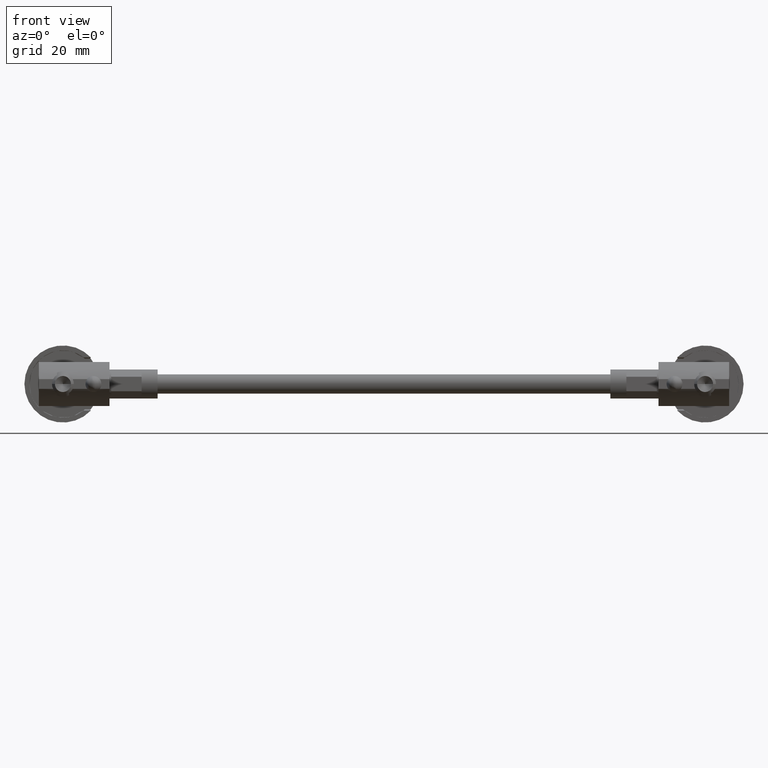
[diagram: clean part render]
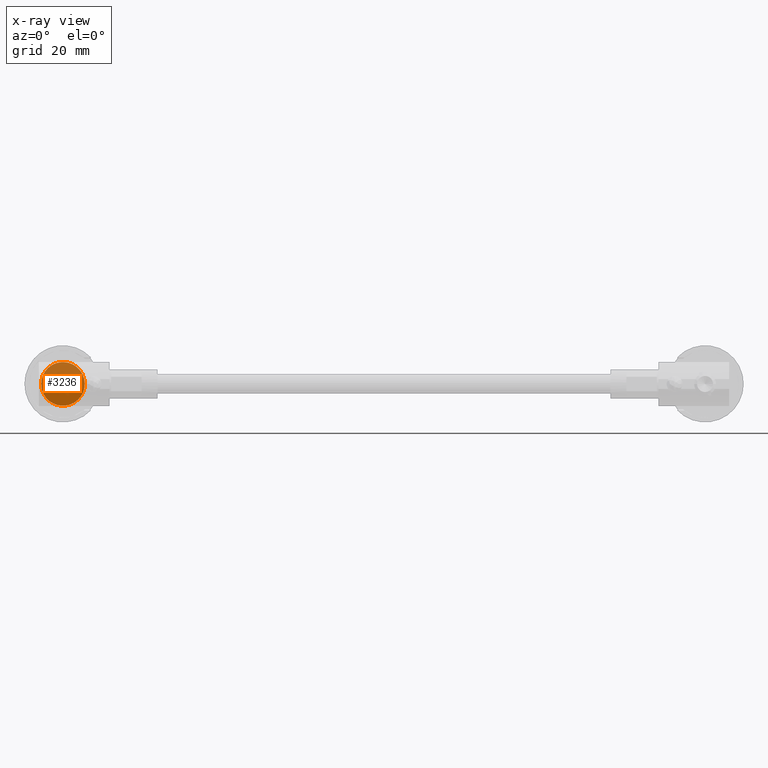
[diagram: x-ray — body ghosted, one internal face saturated and labeled with its STEP entity id]
A machine part, front view, then the same camera in x-ray: the body is ghosted and one INTERNAL B-rep face — a face not visible from any outside direction — is saturated and labeled: STEP entity #3236.
In plain terms, the highlighted planar face has unit normal (0, 1, 0).
Its self-contained STEP definition (entity closure, byte-faithful):
#21 = PLANE ( 'NONE',  #3323 ) ;
#50 = CARTESIAN_POINT ( 'NONE',  ( 2.451776622168244700, -1.499999999999999600, -6.342682507592298800 ) ) ;
#78 = CARTESIAN_POINT ( 'NONE',  ( 4.476154292438891100, -1.500000000000000000, -5.140550543833839500 ) ) ;
#105 = CARTESIAN_POINT ( 'NONE',  ( 0.5187553181418490500, -1.500000000000000700, -6.785809563154090900 ) ) ;
#127 = CARTESIAN_POINT ( 'NONE',  ( -4.974412021882804100, -1.500000000000000000, 4.642213896186592400 ) ) ;
#131 = CARTESIAN_POINT ( 'NONE',  ( 1.058299147395045800, -1.500000000000000200, -6.717518085833138000 ) ) ;
#141 = CARTESIAN_POINT ( 'NONE',  ( 0.0000000000000000000, -1.500000000000000000, 2.450000000000000200 ) ) ;
#151 = CARTESIAN_POINT ( 'NONE',  ( -3.671876369771171200, -1.500000000000000000, 5.723708160945111700 ) ) ;
#180 = CARTESIAN_POINT ( 'NONE',  ( 6.302254143006276600, -1.500000000000000000, -2.554348086591974100 ) ) ;
#212 = CARTESIAN_POINT ( 'NONE',  ( 2.297827778735740600, -1.500000000000000400, 6.403785664097548600 ) ) ;
#236 = CARTESIAN_POINT ( 'NONE',  ( 6.646299250974641900, -1.500000000000000700, 1.454367232381124800 ) ) ;
#259 = CARTESIAN_POINT ( 'NONE',  ( -6.234827372425893800, -1.500000000000000200, 2.714904982621316500 ) ) ;
#265 = CARTESIAN_POINT ( 'NONE',  ( 2.609466943149886500, -1.499999999999999800, 6.279662359104849000 ) ) ;
#295 = CARTESIAN_POINT ( 'NONE',  ( 5.814030721527166700, -1.500000000000000000, 3.527156728714956600 ) ) ;
#318 = CARTESIAN_POINT ( 'NONE',  ( -5.902513528127101900, -1.499999999999999600, -3.379979749997506800 ) ) ;
#506 = CARTESIAN_POINT ( 'NONE',  ( 2.775866078067334400E-016, -1.499999999999999800, -6.799999999999999800 ) ) ;
#620 = DIRECTION ( 'NONE',  ( 0.0000000000000000000, -0.0000000000000000000, 1.000000000000000000 ) ) ;
#681 = CARTESIAN_POINT ( 'NONE',  ( 5.209381874771738200, -1.499999999999999600, -4.381717260642677300 ) ) ;
#732 = ORIENTED_EDGE ( 'NONE', *, *, #6584, .T. ) ;
#760 = CARTESIAN_POINT ( 'NONE',  ( 2.716858799559545500, -1.500000000000000000, -6.237894347230041000 ) ) ;
#784 = CARTESIAN_POINT ( 'NONE',  ( 6.570676803030062600, -1.499999999999999600, 1.775342997942298600 ) ) ;
#813 = CARTESIAN_POINT ( 'NONE',  ( 6.333143709723890100, -1.499999999999999800, 2.476317178203199200 ) ) ;
#833 = VERTEX_POINT ( 'NONE', #1843 ) ;
#838 = CARTESIAN_POINT ( 'NONE',  ( 6.665632822469733700, -1.500000000000000000, -1.345465900745237400 ) ) ;
#840 = CARTESIAN_POINT ( 'NONE',  ( 2.775866078067334400E-016, -1.499999999999999800, -6.799999999999999800 ) ) ;
#870 = CARTESIAN_POINT ( 'NONE',  ( 2.714904982619844400, -1.500000000000000000, 6.234827372426815700 ) ) ;
#891 = CARTESIAN_POINT ( 'NONE',  ( -6.362324675255180800, -1.499999999999999800, -2.400366970927881200 ) ) ;
#920 = CARTESIAN_POINT ( 'NONE',  ( -5.753760992430486000, -1.500000000000000200, -3.624598606719601900 ) ) ;
#968 =( BOUNDED_CURVE ( )  B_SPLINE_CURVE ( 3, ( #8071, #6158, #5461, #1835 ),
 .UNSPECIFIED., .F., .F. ) 
 B_SPLINE_CURVE_WITH_KNOTS ( ( 4, 4 ),
 ( 0.0000000000000000000, 1.000000000000000000 ),
 .UNSPECIFIED. ) 
 CURVE ( )  GEOMETRIC_REPRESENTATION_ITEM ( )  RATIONAL_B_SPLINE_CURVE ( ( 1.000000000000000000, 0.3333333333333333700, 0.3333333333333333700, 1.000000000000000000 ) ) 
 REPRESENTATION_ITEM ( '' )  );
#985 = CARTESIAN_POINT ( 'NONE',  ( -6.342682507592309400, -1.500000000000000000, -2.451776622168173600 ) ) ;
#1012 = CARTESIAN_POINT ( 'NONE',  ( -2.297827778736319700, -1.499999999999999800, -6.403785664097295400 ) ) ;
#1100 = CARTESIAN_POINT ( 'NONE',  ( -3.818714833598194400, -1.500000000000000200, -5.626815244997694700 ) ) ;
#1269 = CARTESIAN_POINT ( 'NONE',  ( 2.323110245679947300, -1.500000000000000400, -6.391308034044540100 ) ) ;
#1327 = EDGE_LOOP ( 'NONE', ( #4024, #732 ) ) ;
#1374 = CARTESIAN_POINT ( 'NONE',  ( -3.029467667712204100, -1.500000000000000200, 6.095520900867990500 ) ) ;
#1392 = VERTEX_POINT ( 'NONE', #141 ) ;
#1401 = CARTESIAN_POINT ( 'NONE',  ( 6.762191246183427900, -1.500000000000000200, -0.8280179359601295100 ) ) ;
#1430 = CARTESIAN_POINT ( 'NONE',  ( 6.455576622285819100, -1.500000000000000200, 2.141848814718721300 ) ) ;
#1449 = CARTESIAN_POINT ( 'NONE',  ( -3.527156728713123800, -1.500000000000000200, 5.814030721528038900 ) ) ;
#1457 = CARTESIAN_POINT ( 'NONE',  ( 1.345465900745219400, -1.499999999999999800, 6.665632822469741600 ) ) ;
#1479 = CARTESIAN_POINT ( 'NONE',  ( -6.333143709723809200, -1.500000000000000000, -2.476317178203424800 ) ) ;
#1484 = CARTESIAN_POINT ( 'NONE',  ( 0.0000000000000000000, -1.500000000000000000, 6.799999999999999800 ) ) ;
#1495 = ORIENTED_EDGE ( 'NONE', *, *, #3879, .F. ) ;
#1509 = CARTESIAN_POINT ( 'NONE',  ( -6.403785664096937500, -1.500000000000000000, 2.297827778738251500 ) ) ;
#1515 = CARTESIAN_POINT ( 'NONE',  ( 4.057979973667790400, -1.500000000000000200, 5.458735099098496400 ) ) ;
#1537 = CARTESIAN_POINT ( 'NONE',  ( -6.391308034044573800, -1.500000000000000200, -2.323110245679712800 ) ) ;
#1568 = CARTESIAN_POINT ( 'NONE',  ( -6.570676803029539500, -1.500000000000000000, -1.775342997943859100 ) ) ;
#1731 = CARTESIAN_POINT ( 'NONE',  ( -1.345465900745489200, -1.500000000000000000, -6.665632822469625300 ) ) ;
#1817 = CARTESIAN_POINT ( 'NONE',  ( 0.0000000000000000000, -1.500000000000000000, 2.450000000000000200 ) ) ;
#1835 = CARTESIAN_POINT ( 'NONE',  ( 0.0000000000000000000, -1.500000000000000000, 2.450000000000000200 ) ) ;
#1843 = CARTESIAN_POINT ( 'NONE',  ( 0.0000000000000000000, -1.500000000000000000, 6.799999999999999800 ) ) ;
#1898 = CARTESIAN_POINT ( 'NONE',  ( 3.527156728713714900, -1.499999999999999800, -5.814030721527546000 ) ) ;
#1921 = CARTESIAN_POINT ( 'NONE',  ( 1.775342997944396900, -1.499999999999999800, -6.570676803029454200 ) ) ;
#1971 = CARTESIAN_POINT ( 'NONE',  ( 0.0000000000000000000, -1.500000000000000000, 6.799999999999999800 ) ) ;
#2017 = CARTESIAN_POINT ( 'NONE',  ( -0.5187553181419247700, -1.500000000000000200, 6.785809563154089100 ) ) ;
#2022 = CARTESIAN_POINT ( 'NONE',  ( 6.695785047961537700, -1.499999999999999800, 1.186255728990053000 ) ) ;
#2049 = CARTESIAN_POINT ( 'NONE',  ( 5.723708160945395000, -1.500000000000000200, 3.671876369770889600 ) ) ;
#2074 = CARTESIAN_POINT ( 'NONE',  ( 6.717505657374201400, -1.500000000000000400, 1.058366280036319800 ) ) ;
#2097 = CARTESIAN_POINT ( 'NONE',  ( 2.872077163165587300, -1.500000000000000000, 6.165637993851405000 ) ) ;
#2124 = CARTESIAN_POINT ( 'NONE',  ( -6.665632822469461000, -1.499999999999999800, 1.345465900746376700 ) ) ;
#2132 = CARTESIAN_POINT ( 'NONE',  ( 4.381717260643701400, -1.500000000000000000, 5.209381874771047200 ) ) ;
#2157 = CARTESIAN_POINT ( 'NONE',  ( -6.744399483090574200, -1.500000000000000400, -0.8789654558778692300 ) ) ;
#2181 = CARTESIAN_POINT ( 'NONE',  ( -5.434459999022031700, -1.500000000000000400, -4.114225948999500600 ) ) ;
#2206 = CARTESIAN_POINT ( 'NONE',  ( -5.626815244997860800, -1.500000000000000200, 3.818714833597938200 ) ) ;
#2347 = CARTESIAN_POINT ( 'NONE',  ( -0.4157435721798152800, -1.499999999999999300, -6.799999999999998000 ) ) ;
#2517 = CARTESIAN_POINT ( 'NONE',  ( 3.671876369771129000, -1.500000000000000000, -5.723708160945107300 ) ) ;
#2593 = CARTESIAN_POINT ( 'NONE',  ( -1.058299147395079400, -1.500000000000000000, 6.717518085833137100 ) ) ;
#2597 = CARTESIAN_POINT ( 'NONE',  ( 3.029467667713432000, -1.499999999999999600, -6.095520900866964600 ) ) ;
#2650 = CARTESIAN_POINT ( 'NONE',  ( -2.141848814718508200, -1.500000000000000200, 6.455576622285684100 ) ) ;
#2655 = CARTESIAN_POINT ( 'NONE',  ( 6.744399483090573400, -1.500000000000000000, 0.8789654558769736100 ) ) ;
#2678 = FACE_BOUND ( 'NONE', #5954, .T. ) ;
#2680 = CARTESIAN_POINT ( 'NONE',  ( 5.140550543832670600, -1.500000000000000400, 4.476154292439686000 ) ) ;
#2705 = CARTESIAN_POINT ( 'NONE',  ( -5.209381874770802100, -1.499999999999999800, 4.381717260643946500 ) ) ;
#2709 = CARTESIAN_POINT ( 'NONE',  ( 0.4157435721783530000, -1.499999999999999600, 6.799999999999998900 ) ) ;
#2736 = CARTESIAN_POINT ( 'NONE',  ( 5.626815244998110400, -1.500000000000000000, -3.818714833597597100 ) ) ;
#2756 = CARTESIAN_POINT ( 'NONE',  ( -6.762191246183425300, -1.499999999999999800, 0.8280179359615063000 ) ) ;
#2761 = CARTESIAN_POINT ( 'NONE',  ( 6.237894347229592500, -1.500000000000000000, 2.716858799561012700 ) ) ;
#2784 = CARTESIAN_POINT ( 'NONE',  ( -6.279662359104335700, -1.499999999999999800, 2.609466943150703600 ) ) ;
#2811 = CARTESIAN_POINT ( 'NONE',  ( -4.642213896187136900, -1.499999999999999600, -4.974412021882446100 ) ) ;
#2841 = CARTESIAN_POINT ( 'NONE',  ( -5.817394889397862200, -1.500000000000000000, 3.528534645719064100 ) ) ;
#2870 = CARTESIAN_POINT ( 'NONE',  ( -2.609466943149932200, -1.500000000000000200, -6.279662359104843700 ) ) ;
#2896 = CARTESIAN_POINT ( 'NONE',  ( -1.985703685445740200, -1.500000000000000000, -6.510194084002892900 ) ) ;
#3110 = VERTEX_POINT ( 'NONE', #840 ) ;
#3112 = CARTESIAN_POINT ( 'NONE',  ( -4.899999999999999500, -1.499999999999999800, 2.450000000000000200 ) ) ;
#3236 = ADVANCED_FACE ( 'NONE', ( #2678, #4751 ), #21, .F. ) ;
#3259 = CARTESIAN_POINT ( 'NONE',  ( -1.210221446905288300, -1.499999999999999800, 6.691498662014975500 ) ) ;
#3281 = CARTESIAN_POINT ( 'NONE',  ( -1.775342997942013000, -1.500000000000000000, 6.570676803029880600 ) ) ;
#3288 = CARTESIAN_POINT ( 'NONE',  ( 6.403785664097532600, -1.500000000000000200, -2.297827778735778800 ) ) ;
#3315 = CARTESIAN_POINT ( 'NONE',  ( 6.691498662014965700, -1.500000000000000000, 1.210221446905266800 ) ) ;
#3323 = AXIS2_PLACEMENT_3D ( 'NONE', #6860, #6248, #620 ) ;
#3336 = CARTESIAN_POINT ( 'NONE',  ( -0.8788503713491333500, -1.500000000000000000, 6.744420789020177900 ) ) ;
#3341 = CARTESIAN_POINT ( 'NONE',  ( 5.660113123008792400, -1.499999999999999800, -3.769149242344393100 ) ) ;
#3364 = CARTESIAN_POINT ( 'NONE',  ( -6.800032466178444100, -1.499999999999999600, 0.4162744795770430000 ) ) ;
#3367 = CARTESIAN_POINT ( 'NONE',  ( 6.676295748310652200, -1.499999999999999800, -1.291474511759278500 ) ) ;
#3396 = CARTESIAN_POINT ( 'NONE',  ( 6.095520900866181300, -1.500000000000000000, 3.029467667716000600 ) ) ;
#3440 = CARTESIAN_POINT ( 'NONE',  ( -4.381717260644903100, -1.500000000000000200, -5.209381874770177700 ) ) ;
#3466 = CARTESIAN_POINT ( 'NONE',  ( -6.649156264789034800, -1.500000000000000000, 1.426318617855332000 ) ) ;
#3525 = CARTESIAN_POINT ( 'NONE',  ( -4.057979973668692800, -1.499999999999999800, -5.458735099097843600 ) ) ;
#3573 = CARTESIAN_POINT ( 'NONE',  ( -3.769149242344355300, -1.500000000000000000, -5.660113123008804000 ) ) ;
#3790 = CARTESIAN_POINT ( 'NONE',  ( 2.141848814720296100, -1.500000000000000200, -6.455576622285363400 ) ) ;
#3835 = CARTESIAN_POINT ( 'NONE',  ( -2.476317178203475400, -1.500000000000000200, 6.333143709723760400 ) ) ;
#3865 = CARTESIAN_POINT ( 'NONE',  ( -3.624598606719408300, -1.500000000000000000, 5.753760992430669000 ) ) ;
#3879 = EDGE_CURVE ( 'NONE', #1392, #6167, #7613, .T. ) ;
#3897 = CARTESIAN_POINT ( 'NONE',  ( -2.451776622167919100, -1.500000000000000700, 6.342682507592357400 ) ) ;
#3900 = CARTESIAN_POINT ( 'NONE',  ( 6.279662359104862400, -1.499999999999999800, -2.609466943149859800 ) ) ;
#3928 = CARTESIAN_POINT ( 'NONE',  ( 2.554348086591984300, -1.499999999999999800, 6.302254143006271300 ) ) ;
#3960 = CARTESIAN_POINT ( 'NONE',  ( 5.902513528126259100, -1.499999999999999800, 3.379979749999822800 ) ) ;
#3989 = CARTESIAN_POINT ( 'NONE',  ( 3.231918100491303600, -1.500000000000000200, 5.990637820600256600 ) ) ;
#4009 = CARTESIAN_POINT ( 'NONE',  ( -5.990637820598342600, -1.500000000000000000, 3.231918100494357100 ) ) ;
#4013 = CARTESIAN_POINT ( 'NONE',  ( 6.362324675255319300, -1.500000000000000000, 2.400366970927468200 ) ) ;
#4024 = ORIENTED_EDGE ( 'NONE', *, *, #4267, .T. ) ;
#4036 = CARTESIAN_POINT ( 'NONE',  ( -6.237894347230232800, -1.500000000000000200, -2.716858799559255900 ) ) ;
#4241 = CARTESIAN_POINT ( 'NONE',  ( -2.872077163165716500, -1.500000000000000000, -6.165637993851382800 ) ) ;
#4267 = EDGE_CURVE ( 'NONE', #833, #3110, #5926, .T. ) ;
#4414 = CARTESIAN_POINT ( 'NONE',  ( 4.114225949001683700, -1.500000000000000200, -5.434459999020601700 ) ) ;
#4436 = CARTESIAN_POINT ( 'NONE',  ( 4.974412021883339600, -1.500000000000000200, -4.642213896185865900 ) ) ;
#4462 = CARTESIAN_POINT ( 'NONE',  ( 1.186234493154547900, -1.500000000000000200, -6.695788979412836500 ) ) ;
#4491 = CARTESIAN_POINT ( 'NONE',  ( 3.379979749997891000, -1.500000000000000000, -5.902513528126849700 ) ) ;
#4516 = CARTESIAN_POINT ( 'NONE',  ( -4.476154292439964000, -1.500000000000000000, 5.140550543832390000 ) ) ;
#4538 = CARTESIAN_POINT ( 'NONE',  ( -1.135077462009557600, -1.499999999999999800, 6.704658002441529000 ) ) ;
#4543 = CARTESIAN_POINT ( 'NONE',  ( 6.800032466178445900, -1.500000000000000000, -0.4162744795756824200 ) ) ;
#4562 = CARTESIAN_POINT ( 'NONE',  ( -2.716858799558843800, -1.500000000000000200, 6.237894347230626300 ) ) ;
#4565 = CARTESIAN_POINT ( 'NONE',  ( 1.426318617853409500, -1.500000000000000200, 6.649156264789503700 ) ) ;
#4596 = CARTESIAN_POINT ( 'NONE',  ( 6.649156264789488600, -1.500000000000000000, -1.426318617853439900 ) ) ;
#4619 = CARTESIAN_POINT ( 'NONE',  ( 1.262920981324877800, -1.500000000000000000, 6.681746359617402000 ) ) ;
#4636 = CARTESIAN_POINT ( 'NONE',  ( -6.646299250974337300, -1.500000000000000000, -1.454367232382017600 ) ) ;
#4643 = CARTESIAN_POINT ( 'NONE',  ( 5.753760992430185800, -1.500000000000000200, 3.624598606720427900 ) ) ;
#4665 = CARTESIAN_POINT ( 'NONE',  ( -5.814030721527706700, -1.499999999999999800, -3.527156728713468400 ) ) ;
#4695 = CARTESIAN_POINT ( 'NONE',  ( -5.660113123009075800, -1.500000000000000200, 3.769149242343942800 ) ) ;
#4725 = CARTESIAN_POINT ( 'NONE',  ( -6.455576622285429200, -1.500000000000000400, -2.141848814719889700 ) ) ;
#4751 = FACE_OUTER_BOUND ( 'NONE', #1327, .T. ) ;
#4752 = CARTESIAN_POINT ( 'NONE',  ( -2.554348086591840000, -1.500000000000000000, -6.302254143006334400 ) ) ;
#5137 = CARTESIAN_POINT ( 'NONE',  ( -5.458735099098314300, -1.500000000000000700, 4.057979973667976900 ) ) ;
#5143 = CARTESIAN_POINT ( 'NONE',  ( 3.528534645717319700, -1.499999999999999800, 5.817394889398953800 ) ) ;
#5173 = CARTESIAN_POINT ( 'NONE',  ( 6.704650520001965900, -1.500000000000000000, 1.135117878599691200 ) ) ;
#5195 = CARTESIAN_POINT ( 'NONE',  ( 1.985703685444727200, -1.500000000000000200, 6.510194084003333400 ) ) ;
#5220 = CARTESIAN_POINT ( 'NONE',  ( 3.818714833597873800, -1.499999999999999800, 5.626815244997924700 ) ) ;
#5243 = CARTESIAN_POINT ( 'NONE',  ( -6.302254143006423200, -1.500000000000000200, 2.554348086591358100 ) ) ;
#5248 = CARTESIAN_POINT ( 'NONE',  ( 6.234827372426835300, -1.500000000000000000, -2.714904982619796800 ) ) ;
#5298 = CARTESIAN_POINT ( 'NONE',  ( -6.695785047961540400, -1.500000000000000400, -1.186255728990220500 ) ) ;
#5326 = CARTESIAN_POINT ( 'NONE',  ( -6.717505657374199600, -1.500000000000000000, -1.058366280036841900 ) ) ;
#5350 = CARTESIAN_POINT ( 'NONE',  ( -1.614034393178139100, -1.500000000000000200, -6.607335781103207000 ) ) ;
#5461 = CARTESIAN_POINT ( 'NONE',  ( 4.899999999999999500, -1.499999999999999800, 2.450000000000000200 ) ) ;
#5468 = CARTESIAN_POINT ( 'NONE',  ( -3.231918100491477200, -1.500000000000000200, -5.990637820600226400 ) ) ;
#5659 = ORIENTED_EDGE ( 'NONE', *, *, #7396, .F. ) ;
#5670 = CARTESIAN_POINT ( 'NONE',  ( 1.454367232382324500, -1.499999999999999800, -6.646299250974289300 ) ) ;
#5726 = CARTESIAN_POINT ( 'NONE',  ( 2.775866078067334400E-016, -1.499999999999999800, -6.799999999999999800 ) ) ;
#5753 = CARTESIAN_POINT ( 'NONE',  ( -3.379979749996969900, -1.500000000000000000, 5.902513528127618900 ) ) ;
#5783 = CARTESIAN_POINT ( 'NONE',  ( 5.817394889398974200, -1.500000000000000200, -3.528534645717263300 ) ) ;
#5809 = CARTESIAN_POINT ( 'NONE',  ( 6.342682507592383200, -1.500000000000000200, 2.451776622167954700 ) ) ;
#5829 = CARTESIAN_POINT ( 'NONE',  ( -4.114225949001333800, -1.500000000000000700, 5.434459999020574200 ) ) ;
#5832 = CARTESIAN_POINT ( 'NONE',  ( 1.291474511759269000, -1.500000000000000200, 6.676295748310657500 ) ) ;
#5836 = B_SPLINE_CURVE_WITH_KNOTS ( 'NONE', 3,
 ( #5726, #7576, #105, #7601, #131, #6388, #4462, #7527, #5670, #1921, #3790, #1269, #6991, #50, #6365, #760, #2597, #4491, #1898, #6283, #2517, #4414, #78, #4436, #681, #6483, #7657, #2736, #3341, #5783, #7093, #6413, #5248, #3900, #180, #3288, #7128, #7761, #4596, #838, #3367, #7067, #1401, #4543, #7042, #7018, #2655, #2074, #5173, #2022, #3315, #236, #784, #1430, #5896, #4013, #5809, #813, #2761, #3396, #3960, #295, #4643, #2049, #6436, #2680, #7737, #2132, #1515, #7685, #5220, #7711, #5143, #3989, #2097, #870, #265, #3928, #212, #5195, #6508, #4565, #1457, #5832, #4619, #6456, #2709, #1484 ),
 .UNSPECIFIED., .F., .F.,
 ( 4, 1, 1, 1, 2, 2, 1, 1, 1, 2, 2, 1, 1, 2, 2, 2, 1, 1, 2, 2, 1, 1, 2, 2, 1, 1, 1, 2, 2, 2, 1, 1, 1, 2, 2, 1, 1, 1, 2, 2, 1, 1, 2, 2, 2, 1, 1, 2, 2, 1, 1, 2, 2, 1, 1, 1, 2, 2, 4 ),
 ( 0.0000000000000000000, 0.03124999999999984000, 0.04687499999999976400, 0.05468749999999972200, 0.05859374999999971600, 0.06249999999999970900, 0.09374999999999968100, 0.1093749999999996900, 0.1171874999999997100, 0.1210937499999997100, 0.1249999999999997200, 0.1562499999999997500, 0.1718749999999997200, 0.1796874999999997500, 0.1874999999999997500, 0.2499999999999995600, 0.2812499999999994400, 0.2968749999999994400, 0.3046874999999993900, 0.3124999999999993300, 0.3437499999999993300, 0.3593749999999992800, 0.3671874999999992800, 0.3749999999999992800, 0.4062499999999993900, 0.4218749999999993300, 0.4296874999999993300, 0.4335937499999993900, 0.4374999999999994400, 0.5000000000000002200, 0.5312500000000006700, 0.5468750000000007800, 0.5546875000000007800, 0.5585937500000007800, 0.5625000000000007800, 0.5937500000000010000, 0.6093750000000011100, 0.6171875000000012200, 0.6210937500000011100, 0.6250000000000011100, 0.6562500000000008900, 0.6718750000000006700, 0.6796875000000006700, 0.6875000000000005600, 0.7500000000000000000, 0.7812499999999997800, 0.7968749999999996700, 0.8046874999999996700, 0.8124999999999996700, 0.8437499999999996700, 0.8593749999999996700, 0.8671874999999996700, 0.8749999999999996700, 0.9062499999999995600, 0.9218749999999995600, 0.9296874999999994400, 0.9335937499999994400, 0.9374999999999994400, 1.000000000000000000 ),
 .UNSPECIFIED. ) ;
#5896 = CARTESIAN_POINT ( 'NONE',  ( 6.391308034044804700, -1.500000000000000000, 2.323110245679028000 ) ) ;
#5916 = CARTESIAN_POINT ( 'NONE',  ( -6.607335781102736200, -1.499999999999999600, 1.614034393180670700 ) ) ;
#5926 = B_SPLINE_CURVE_WITH_KNOTS ( 'NONE', 3,
 ( #1971, #6987, #2017, #3336, #2593, #4538, #7681, #3259, #7596, #3281, #2650, #6959, #6453, #3897, #3835, #4562, #1374, #5753, #1449, #3865, #151, #5829, #4516, #127, #2705, #5137, #6477, #2206, #4695, #2841, #4009, #6501, #259, #2784, #5243, #1509, #7204, #5916, #3466, #2124, #7846, #7146, #2756, #3364, #7786, #7122, #2157, #5326, #6532, #5298, #7756, #4636, #1568, #4725, #1537, #891, #985, #1479, #4036, #7728, #318, #4665, #920, #5942, #2181, #6562, #2811, #3440, #3525, #6610, #1100, #3573, #7957, #5468, #4241, #7285, #2870, #4752, #1012, #2896, #5350, #6686, #1731, #7340, #7231, #7878, #2347, #506 ),
 .UNSPECIFIED., .F., .F.,
 ( 4, 1, 1, 1, 2, 2, 1, 1, 1, 2, 2, 1, 1, 2, 2, 2, 1, 1, 2, 2, 1, 1, 2, 2, 1, 1, 1, 2, 2, 2, 1, 1, 1, 2, 2, 1, 1, 1, 2, 2, 1, 1, 2, 2, 2, 1, 1, 2, 2, 1, 1, 2, 2, 1, 1, 1, 2, 2, 4 ),
 ( 0.0000000000000000000, 0.03125000000000004900, 0.04687500000000009000, 0.05468750000000006900, 0.05859375000000006200, 0.06250000000000005600, 0.09375000000000000000, 0.1093750000000000000, 0.1171875000000000300, 0.1210937500000000400, 0.1250000000000000300, 0.1562500000000004400, 0.1718750000000006700, 0.1796875000000007200, 0.1875000000000008000, 0.2500000000000010500, 0.2812500000000012200, 0.2968750000000012800, 0.3046875000000013900, 0.3125000000000014400, 0.3437500000000016700, 0.3593750000000017800, 0.3671875000000017800, 0.3750000000000018300, 0.4062500000000017800, 0.4218750000000017800, 0.4296875000000017200, 0.4335937500000016700, 0.4375000000000016100, 0.5000000000000010000, 0.5312500000000006700, 0.5468750000000005600, 0.5546875000000004400, 0.5585937500000004400, 0.5625000000000004400, 0.5937500000000004400, 0.6093750000000005600, 0.6171875000000005600, 0.6210937500000005600, 0.6250000000000005600, 0.6562500000000007800, 0.6718750000000008900, 0.6796875000000010000, 0.6875000000000010000, 0.7500000000000013300, 0.7812500000000014400, 0.7968750000000014400, 0.8046875000000014400, 0.8125000000000014400, 0.8437500000000014400, 0.8593750000000014400, 0.8671875000000014400, 0.8750000000000014400, 0.9062500000000012200, 0.9218750000000011100, 0.9296875000000010000, 0.9335937500000010000, 0.9375000000000010000, 1.000000000000000000 ),
 .UNSPECIFIED. ) ;
#5942 = CARTESIAN_POINT ( 'NONE',  ( -5.723708160944929600, -1.500000000000000400, -3.671876369771403400 ) ) ;
#5954 = EDGE_LOOP ( 'NONE', ( #1495, #5659 ) ) ;
#6158 = CARTESIAN_POINT ( 'NONE',  ( 4.899999999999999500, -1.499999999999999800, -2.449999999999999700 ) ) ;
#6167 = VERTEX_POINT ( 'NONE', #7834 ) ;
#6248 = DIRECTION ( 'NONE',  ( 0.0000000000000000000, 1.000000000000000000, 0.0000000000000000000 ) ) ;
#6283 = CARTESIAN_POINT ( 'NONE',  ( 3.624598606719736400, -1.500000000000000700, -5.753760992430395400 ) ) ;
#6365 = CARTESIAN_POINT ( 'NONE',  ( 2.476317178203383500, -1.500000000000000200, -6.333143709723836800 ) ) ;
#6388 = CARTESIAN_POINT ( 'NONE',  ( 1.135077462009536700, -1.500000000000000000, -6.704658002441530800 ) ) ;
#6413 = CARTESIAN_POINT ( 'NONE',  ( 6.165637993851434300, -1.500000000000000000, -2.872077163165514900 ) ) ;
#6436 = CARTESIAN_POINT ( 'NONE',  ( 5.434459999018300500, -1.500000000000000200, 4.114225949003610200 ) ) ;
#6453 = CARTESIAN_POINT ( 'NONE',  ( -2.400366970927394500, -1.500000000000000000, 6.362324675255266900 ) ) ;
#6456 = CARTESIAN_POINT ( 'NONE',  ( 0.8281931576458848600, -1.500000000000000200, 6.762158835077566500 ) ) ;
#6477 = CARTESIAN_POINT ( 'NONE',  ( -5.560291137229712400, -1.500000000000000000, 3.914987305211940600 ) ) ;
#6483 = CARTESIAN_POINT ( 'NONE',  ( 5.458735099099012400, -1.499999999999999600, -4.057979973667021200 ) ) ;
#6501 = CARTESIAN_POINT ( 'NONE',  ( -6.165637993849969700, -1.500000000000000200, 2.872077163167878300 ) ) ;
#6508 = CARTESIAN_POINT ( 'NONE',  ( 1.614034393177376000, -1.500000000000000700, 6.607335781103535600 ) ) ;
#6532 = CARTESIAN_POINT ( 'NONE',  ( -6.704650520001965900, -1.499999999999999800, -1.135117878600007300 ) ) ;
#6562 = CARTESIAN_POINT ( 'NONE',  ( -5.140550543831295700, -1.500000000000000000, -4.476154292440679000 ) ) ;
#6584 = EDGE_CURVE ( 'NONE', #3110, #833, #5836, .T. ) ;
#6610 = CARTESIAN_POINT ( 'NONE',  ( -3.914987305212401100, -1.500000000000000000, -5.560291137229410400 ) ) ;
#6686 = CARTESIAN_POINT ( 'NONE',  ( -1.426318617853855400, -1.500000000000000000, -6.649156264789308300 ) ) ;
#6860 = CARTESIAN_POINT ( 'NONE',  ( 0.0000000000000000000, -1.500000000000000000, 0.0000000000000000000 ) ) ;
#6959 = CARTESIAN_POINT ( 'NONE',  ( -2.323110245678905500, -1.500000000000000000, 6.391308034044721300 ) ) ;
#6987 = CARTESIAN_POINT ( 'NONE',  ( -0.2080495563380578600, -1.500000000000000200, 6.800000000000001600 ) ) ;
#6991 = CARTESIAN_POINT ( 'NONE',  ( 2.400366970928021100, -1.500000000000000000, -6.362324675255159400 ) ) ;
#7018 = CARTESIAN_POINT ( 'NONE',  ( 6.785781155247948800, -1.500000000000000000, 0.5189087641790465200 ) ) ;
#7042 = CARTESIAN_POINT ( 'NONE',  ( 6.799983766910776800, -1.500000000000000000, 0.2081372397878425400 ) ) ;
#7067 = CARTESIAN_POINT ( 'NONE',  ( 6.681744333923285600, -1.500000000000000000, -1.262931932680237100 ) ) ;
#7093 = CARTESIAN_POINT ( 'NONE',  ( 5.990637820600294800, -1.500000000000000200, -3.231918100491209000 ) ) ;
#7122 = CARTESIAN_POINT ( 'NONE',  ( -6.785781155247949700, -1.500000000000000000, -0.5189087641802375700 ) ) ;
#7128 = CARTESIAN_POINT ( 'NONE',  ( 6.510194084003305000, -1.500000000000000000, -1.985703685444794700 ) ) ;
#7146 = CARTESIAN_POINT ( 'NONE',  ( -6.681744333923285600, -1.500000000000000000, 1.262931932680151800 ) ) ;
#7204 = CARTESIAN_POINT ( 'NONE',  ( -6.510194084002268500, -1.500000000000000000, 1.985703685449118600 ) ) ;
#7231 = CARTESIAN_POINT ( 'NONE',  ( -1.262920981324788600, -1.499999999999999800, -6.681746359617400300 ) ) ;
#7285 = CARTESIAN_POINT ( 'NONE',  ( -2.714904982619927400, -1.500000000000000000, -6.234827372426803300 ) ) ;
#7340 = CARTESIAN_POINT ( 'NONE',  ( -1.291474511759412000, -1.499999999999999800, -6.676295748310596200 ) ) ;
#7396 = EDGE_CURVE ( 'NONE', #6167, #1392, #968, .T. ) ;
#7469 = CARTESIAN_POINT ( 'NONE',  ( -4.899999999999999500, -1.499999999999999800, -2.450000000000000600 ) ) ;
#7527 = CARTESIAN_POINT ( 'NONE',  ( 1.210221446905117600, -1.500000000000000000, -6.691498662015007400 ) ) ;
#7576 = CARTESIAN_POINT ( 'NONE',  ( 0.2080495563380142200, -1.500000000000000200, -6.799999999999999800 ) ) ;
#7596 = CARTESIAN_POINT ( 'NONE',  ( -1.454367232380961300, -1.499999999999999800, 6.646299250974533600 ) ) ;
#7601 = CARTESIAN_POINT ( 'NONE',  ( 0.8788503713490765100, -1.500000000000000200, -6.744420789020179700 ) ) ;
#7613 =( BOUNDED_CURVE ( )  B_SPLINE_CURVE ( 3, ( #1817, #3112, #7469, #7904 ),
 .UNSPECIFIED., .F., .F. ) 
 B_SPLINE_CURVE_WITH_KNOTS ( ( 4, 4 ),
 ( 0.0000000000000000000, 1.000000000000000000 ),
 .UNSPECIFIED. ) 
 CURVE ( )  GEOMETRIC_REPRESENTATION_ITEM ( )  RATIONAL_B_SPLINE_CURVE ( ( 1.000000000000000000, 0.3333333333333333700, 0.3333333333333333700, 1.000000000000000000 ) ) 
 REPRESENTATION_ITEM ( '' )  );
#7657 = CARTESIAN_POINT ( 'NONE',  ( 5.560291137230161800, -1.499999999999999600, -3.914987305211326900 ) ) ;
#7681 = CARTESIAN_POINT ( 'NONE',  ( -1.186234493154559200, -1.499999999999999800, 6.695788979412834700 ) ) ;
#7685 = CARTESIAN_POINT ( 'NONE',  ( 3.914987305211823800, -1.500000000000000000, 5.560291137229831400 ) ) ;
#7711 = CARTESIAN_POINT ( 'NONE',  ( 3.769149242344381500, -1.499999999999999800, 5.660113123008798700 ) ) ;
#7728 = CARTESIAN_POINT ( 'NONE',  ( -6.095520900867301300, -1.500000000000000200, -3.029467667712920400 ) ) ;
#7737 = CARTESIAN_POINT ( 'NONE',  ( 4.642213896186450300, -1.500000000000000200, 4.974412021882944400 ) ) ;
#7756 = CARTESIAN_POINT ( 'NONE',  ( -6.691498662015001200, -1.500000000000000000, -1.210221446905158400 ) ) ;
#7761 = CARTESIAN_POINT ( 'NONE',  ( 6.607335781103516000, -1.500000000000000000, -1.614034393177426600 ) ) ;
#7786 = CARTESIAN_POINT ( 'NONE',  ( -6.799983766910778500, -1.500000000000000400, -0.2081372397885232200 ) ) ;
#7834 = CARTESIAN_POINT ( 'NONE',  ( 1.000128219303670600E-016, -1.499999999999999800, -2.450000000000000200 ) ) ;
#7846 = CARTESIAN_POINT ( 'NONE',  ( -6.676295748310512800, -1.500000000000000200, 1.291474511759876900 ) ) ;
#7878 = CARTESIAN_POINT ( 'NONE',  ( -0.8281931576473460200, -1.500000000000000700, -6.762158835077567400 ) ) ;
#7904 = CARTESIAN_POINT ( 'NONE',  ( 1.000128219303670600E-016, -1.499999999999999800, -2.450000000000000200 ) ) ;
#7957 = CARTESIAN_POINT ( 'NONE',  ( -3.528534645717419100, -1.500000000000000000, -5.817394889398937800 ) ) ;
#8071 = CARTESIAN_POINT ( 'NONE',  ( 1.000128219303670600E-016, -1.499999999999999800, -2.450000000000000200 ) ) ;